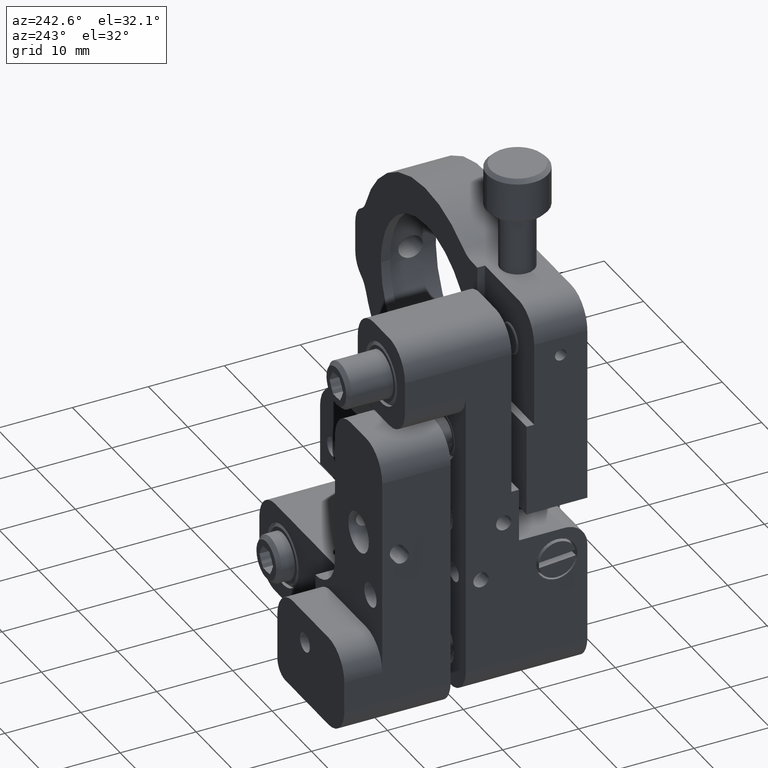
[diagram: clean part render]
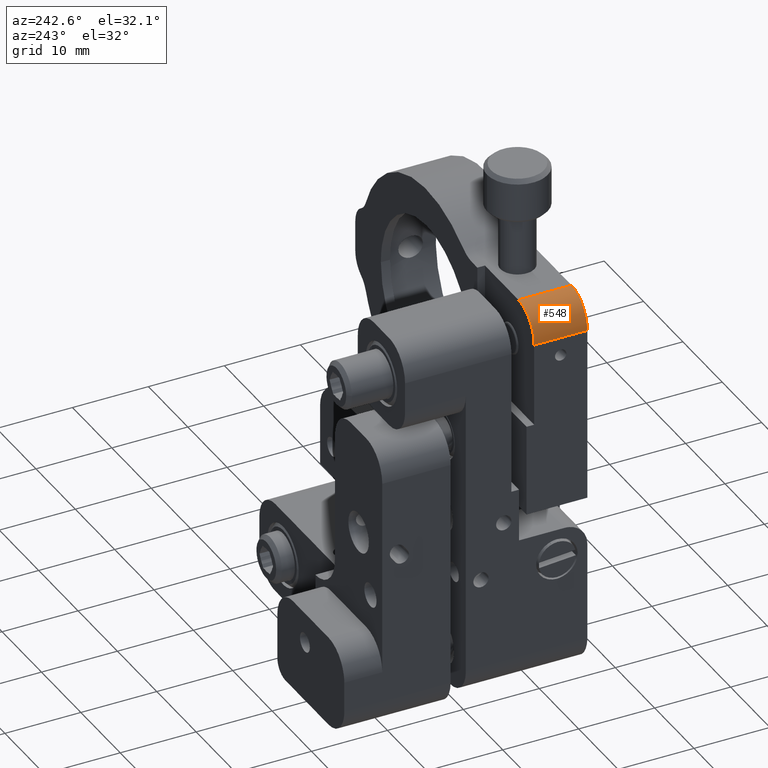
[diagram: same view with one face highlighted and labeled with its STEP entity id]
A machine part, auxiliary view. The second image highlights one B-rep face of the part: STEP entity #548.
In plain terms, the highlighted face is a freeform B-spline surface patch.
Its self-contained STEP definition (entity closure, byte-faithful):
#548=ADVANCED_FACE('',(#995),#16038,.T.);
#995=FACE_OUTER_BOUND('',#1453,.T.);
#1453=EDGE_LOOP('',(#2329,#2330,#2331,#2332));
#2329=ORIENTED_EDGE('',*,*,#12656,.F.);
#2330=ORIENTED_EDGE('',*,*,#12742,.F.);
#2331=ORIENTED_EDGE('',*,*,#12592,.F.);
#2332=ORIENTED_EDGE('',*,*,#12743,.T.);
#4371=PCURVE('',#15848,#6745);
#4495=PCURVE('',#15851,#6869);
#4698=PCURVE('',#15866,#7072);
#4703=PCURVE('',#16038,#7077);
#4704=PCURVE('',#16038,#7078);
#4705=PCURVE('',#16038,#7079);
#4706=PCURVE('',#16038,#7080);
#4707=PCURVE('',#15867,#7081);
#6745=DEFINITIONAL_REPRESENTATION('',(#13809),#34671);
#6869=DEFINITIONAL_REPRESENTATION('',(#13882),#34671);
#7072=DEFINITIONAL_REPRESENTATION('',(#9421),#34671);
#7077=DEFINITIONAL_REPRESENTATION('',(#9423),#34671);
#7078=DEFINITIONAL_REPRESENTATION('',(#9424),#34671);
#7079=DEFINITIONAL_REPRESENTATION('',(#9425),#34671);
#7080=DEFINITIONAL_REPRESENTATION('',(#9426),#34671);
#7081=DEFINITIONAL_REPRESENTATION('',(#9427),#34671);
#9421=B_SPLINE_CURVE_WITH_KNOTS('',1,(#19775,#19776),.UNSPECIFIED.,.F.,
 .F.,(2,2),(0.,6.99999999999999),.UNSPECIFIED.);
#9423=B_SPLINE_CURVE_WITH_KNOTS('',1,(#19792,#19793),.UNSPECIFIED.,.F.,
 .F.,(2,2),(0.,6.28318530717959),.UNSPECIFIED.);
#9424=B_SPLINE_CURVE_WITH_KNOTS('',1,(#19794,#19795),.UNSPECIFIED.,.F.,
 .F.,(2,2),(0.,6.99999999999999),.UNSPECIFIED.);
#9425=B_SPLINE_CURVE_WITH_KNOTS('',1,(#19796,#19797),.UNSPECIFIED.,.F.,
 .F.,(2,2),(0.,6.28318530717959),.UNSPECIFIED.);
#9426=B_SPLINE_CURVE_WITH_KNOTS('',1,(#19800,#19801),.UNSPECIFIED.,.F.,
 .F.,(2,2),(0.,7.00000000000002),.UNSPECIFIED.);
#9427=B_SPLINE_CURVE_WITH_KNOTS('',1,(#19802,#19803),.UNSPECIFIED.,.F.,
 .F.,(2,2),(0.,7.00000000000002),.UNSPECIFIED.);
#11378=SURFACE_CURVE('',#13808,(#4371,#4705),.PCURVE_S1.);
#11442=SURFACE_CURVE('',#13881,(#4495,#4703),.PCURVE_S1.);
#11528=SURFACE_CURVE('',#13981,(#4698,#4704),.PCURVE_S1.);
#11529=SURFACE_CURVE('',#13985,(#4706,#4707),.PCURVE_S1.);
#12592=EDGE_CURVE('',#15093,#15094,#11378,.T.);
#12656=EDGE_CURVE('',#15136,#15137,#11442,.T.);
#12742=EDGE_CURVE('',#15094,#15136,#11528,.T.);
#12743=EDGE_CURVE('',#15093,#15137,#11529,.T.);
#13808=(
BOUNDED_CURVE()
B_SPLINE_CURVE(2,(#18432,#18433,#18434),.UNSPECIFIED.,.F.,.F.)
B_SPLINE_CURVE_WITH_KNOTS((3,3),(0.,6.28318530717959),.UNSPECIFIED.)
CURVE()
GEOMETRIC_REPRESENTATION_ITEM()
RATIONAL_B_SPLINE_CURVE((1.,0.707106781186548,1.))
REPRESENTATION_ITEM('')
);
#13809=(
BOUNDED_CURVE()
B_SPLINE_CURVE(2,(#18435,#18436,#18437),.UNSPECIFIED.,.F.,.F.)
B_SPLINE_CURVE_WITH_KNOTS((3,3),(0.,6.28318530717959),.UNSPECIFIED.)
CURVE()
GEOMETRIC_REPRESENTATION_ITEM()
RATIONAL_B_SPLINE_CURVE((1.,0.707106781186534,1.))
REPRESENTATION_ITEM('')
);
#13881=(
BOUNDED_CURVE()
B_SPLINE_CURVE(2,(#18980,#18981,#18982),.UNSPECIFIED.,.F.,.F.)
B_SPLINE_CURVE_WITH_KNOTS((3,3),(0.,6.28318530717959),.UNSPECIFIED.)
CURVE()
GEOMETRIC_REPRESENTATION_ITEM()
RATIONAL_B_SPLINE_CURVE((1.,0.707106781186543,1.))
REPRESENTATION_ITEM('')
);
#13882=(
BOUNDED_CURVE()
B_SPLINE_CURVE(2,(#18983,#18984,#18985),.UNSPECIFIED.,.F.,.F.)
B_SPLINE_CURVE_WITH_KNOTS((3,3),(0.,6.28318530717959),.UNSPECIFIED.)
CURVE()
GEOMETRIC_REPRESENTATION_ITEM()
RATIONAL_B_SPLINE_CURVE((1.,0.707106781186543,1.))
REPRESENTATION_ITEM('')
);
#13981=(
BOUNDED_CURVE()
B_SPLINE_CURVE(1,(#19773,#19774),.UNSPECIFIED.,.F.,.F.)
B_SPLINE_CURVE_WITH_KNOTS((2,2),(0.,6.99999999999999),.UNSPECIFIED.)
CURVE()
GEOMETRIC_REPRESENTATION_ITEM()
RATIONAL_B_SPLINE_CURVE((1.,1.))
REPRESENTATION_ITEM('')
);
#13985=(
BOUNDED_CURVE()
B_SPLINE_CURVE(1,(#19798,#19799),.UNSPECIFIED.,.F.,.F.)
B_SPLINE_CURVE_WITH_KNOTS((2,2),(0.,7.00000000000002),.UNSPECIFIED.)
CURVE()
GEOMETRIC_REPRESENTATION_ITEM()
RATIONAL_B_SPLINE_CURVE((1.,1.))
REPRESENTATION_ITEM('')
);
#15093=VERTEX_POINT('',#17700);
#15094=VERTEX_POINT('',#17701);
#15136=VERTEX_POINT('',#17743);
#15137=VERTEX_POINT('',#17744);
#15848=B_SPLINE_SURFACE_WITH_KNOTS('',1,1,((#16811,#16812),(#16813,#16814)),
 .UNSPECIFIED.,.F.,.F.,.F.,(2,2),(2,2),(-52.8022156895754,-4.9737991503207E-14),
(4.52970994047064E-14,52.4399999999996),.UNSPECIFIED.);
#15851=B_SPLINE_SURFACE_WITH_KNOTS('',1,1,((#17165,#17166),(#17167,#17168)),
 .UNSPECIFIED.,.F.,.F.,.F.,(2,2),(2,2),(1.04360964314765E-14,18.2400009020169),
(1.13242748511766E-14,15.24),.UNSPECIFIED.);
#15866=B_SPLINE_SURFACE_WITH_KNOTS('',1,1,((#17567,#17568),(#17569,#17570)),
 .UNSPECIFIED.,.F.,.F.,.F.,(2,2),(2,2),(3.69831518778341E-05,27.9488185536053),
(-1.38963729412467E-10,9.84010414065341),.UNSPECIFIED.);
#15867=B_SPLINE_SURFACE_WITH_KNOTS('',1,1,((#17589,#17590),(#17591,#17592)),
 .UNSPECIFIED.,.F.,.F.,.F.,(2,2),(2,2),(-2.99760216648792E-14,9.84000090201685),
(-12.0994916363313,2.97095681389692E-13),.UNSPECIFIED.);
#16038=(
BOUNDED_SURFACE()
B_SPLINE_SURFACE(2,1,((#17571,#17572),(#17573,#17574),(#17575,#17576),(#17577,
#17578),(#17579,#17580),(#17581,#17582),(#17583,#17584),(#17585,#17586),
(#17587,#17588)),.UNSPECIFIED.,.T.,.F.,.F.)
B_SPLINE_SURFACE_WITH_KNOTS((3,2,2,2,3),(2,2),(0.,1.5707963267949,3.14159265358979,
4.71238898038469,6.28318530717959),(0.,8.6400369827588),.UNSPECIFIED.)
GEOMETRIC_REPRESENTATION_ITEM()
RATIONAL_B_SPLINE_SURFACE(((1.,1.),(0.707106781186548,0.707106781186548),
(1.,1.),(0.707106781186548,0.707106781186548),(1.,1.),(0.707106781186548,
0.707106781186548),(1.,1.),(0.707106781186548,0.707106781186548),(1.,1.)))
REPRESENTATION_ITEM('')
SURFACE()
);
#16811=CARTESIAN_POINT('',(119.116464428215,53.6272677187059,-10.0001657535121));
#16812=CARTESIAN_POINT('',(66.6764644282154,53.6272677187059,-10.0001657535121));
#16813=CARTESIAN_POINT('',(119.116464428215,0.825052029503493,-9.99996730110401));
#16814=CARTESIAN_POINT('',(66.6764644282154,0.825052029503493,-9.99996730110401));
#17165=CARTESIAN_POINT('',(116.016464428215,27.2958879038207,-3.00006678932517));
#17166=CARTESIAN_POINT('',(100.776464428215,27.2958879038207,-3.00006678932517));
#17167=CARTESIAN_POINT('',(116.016464428215,45.5358888057088,-3.00013534273821));
#17168=CARTESIAN_POINT('',(100.776464428215,45.5358888057088,-3.00013534273821));
#17567=CARTESIAN_POINT('',(114.646464428215,14.3961719151577,-10.9201228988188));
#17568=CARTESIAN_POINT('',(114.646464428215,14.3961719151577,-1.08001875802639));
#17569=CARTESIAN_POINT('',(114.646464428215,42.3449534856111,-10.9201228988188));
#17570=CARTESIAN_POINT('',(114.646464428215,42.3449534856111,-1.08001875802639));
#17571=CARTESIAN_POINT('',(110.646464428215,35.9158914367345,-2.18008069545278));
#17572=CARTESIAN_POINT('',(110.646464428215,35.9158589639277,-10.8201176781506));
#17573=CARTESIAN_POINT('',(106.646464428215,35.9158914367345,-2.18008069545278));
#17574=CARTESIAN_POINT('',(106.646464428215,35.9158589639277,-10.8201176781506));
#17575=CARTESIAN_POINT('',(106.646464428215,39.9158914367062,-2.18009572909524));
#17576=CARTESIAN_POINT('',(106.646464428215,39.9158589638995,-10.820132711793));
#17577=CARTESIAN_POINT('',(106.646464428215,43.915891436678,-2.18011076273769));
#17578=CARTESIAN_POINT('',(106.646464428215,43.9158589638713,-10.8201477454355));
#17579=CARTESIAN_POINT('',(110.646464428215,43.915891436678,-2.18011076273769));
#17580=CARTESIAN_POINT('',(110.646464428215,43.9158589638713,-10.8201477454355));
#17581=CARTESIAN_POINT('',(114.646464428215,43.915891436678,-2.18011076273769));
#17582=CARTESIAN_POINT('',(114.646464428215,43.9158589638713,-10.8201477454355));
#17583=CARTESIAN_POINT('',(114.646464428215,39.9158914367062,-2.18009572909524));
#17584=CARTESIAN_POINT('',(114.646464428215,39.9158589638995,-10.820132711793));
#17585=CARTESIAN_POINT('',(114.646464428215,35.9158914367345,-2.18008069545278));
#17586=CARTESIAN_POINT('',(114.646464428215,35.9158589639277,-10.8201176781506));
#17587=CARTESIAN_POINT('',(110.646464428215,35.9158914367345,-2.18008069545278));
#17588=CARTESIAN_POINT('',(110.646464428215,35.9158589639277,-10.8201176781506));
#17589=CARTESIAN_POINT('',(99.6552637615777,43.915858588098,-10.9201297050638));
#17590=CARTESIAN_POINT('',(111.754755397909,43.915858588098,-10.9201297050638));
#17591=CARTESIAN_POINT('',(99.6552637615777,43.9158955708619,-1.08012880311645));
#17592=CARTESIAN_POINT('',(111.754755397909,43.9158955708619,-1.08012880311645));
#17700=CARTESIAN_POINT('',(110.646464428215,43.9158620458375,-10.0001292540619));
#17701=CARTESIAN_POINT('',(114.646464428215,39.9158620458657,-10.0001142204194));
#17743=CARTESIAN_POINT('',(114.646464428215,39.91588835474,-3.00011422046885));
#17744=CARTESIAN_POINT('',(110.646464428215,43.9158883547118,-3.00012925411132));
#18432=CARTESIAN_POINT('',(110.646464428215,43.9158620458375,-10.0001292540619));
#18433=CARTESIAN_POINT('',(114.646464428215,43.9158620458375,-10.0001292540619));
#18434=CARTESIAN_POINT('',(114.646464428215,39.9158620458657,-10.0001142204194));
#18435=CARTESIAN_POINT('',(-43.0908100166384,8.47));
#18436=CARTESIAN_POINT('',(-43.0908100166385,4.47000000000001));
#18437=CARTESIAN_POINT('',(-39.0908100166384,4.47));
#18980=CARTESIAN_POINT('',(114.646464428215,39.91588835474,-3.00011422046885));
#18981=CARTESIAN_POINT('',(114.646464428215,43.9158883547118,-3.00012925411132));
#18982=CARTESIAN_POINT('',(110.646464428215,43.9158883547118,-3.00012925411132));
#18983=CARTESIAN_POINT('',(12.6200004510084,1.37));
#18984=CARTESIAN_POINT('',(16.6200004510085,1.37));
#18985=CARTESIAN_POINT('',(16.6200004510085,5.37));
#19773=CARTESIAN_POINT('',(114.646464428215,39.9158620458657,-10.0001142204194));
#19774=CARTESIAN_POINT('',(114.646464428215,39.91588835474,-3.00011422046885));
#19775=CARTESIAN_POINT('',(25.5197271138599,0.9200086782604));
#19776=CARTESIAN_POINT('',(25.5197534227342,7.92000867821095));
#19792=CARTESIAN_POINT('',(4.71238898038469,0.820018491379403));
#19793=CARTESIAN_POINT('',(3.14159265358979,0.82001849137942));
#19794=CARTESIAN_POINT('',(4.71238898038469,7.82001849137941));
#19795=CARTESIAN_POINT('',(4.71238898038469,0.820018491379403));
#19796=CARTESIAN_POINT('',(3.14159265358979,7.82001849137941));
#19797=CARTESIAN_POINT('',(4.71238898038469,7.82001849137941));
#19798=CARTESIAN_POINT('',(110.646464428215,43.9158620458375,-10.0001292540619));
#19799=CARTESIAN_POINT('',(110.646464428215,43.9158883547118,-3.00012925411132));
#19800=CARTESIAN_POINT('',(3.14159265358979,7.82001849137941));
#19801=CARTESIAN_POINT('',(3.14159265358979,0.82001849137942));
#19802=CARTESIAN_POINT('',(0.920000451008397,-1.108290969694));
#19803=CARTESIAN_POINT('',(7.92000045100842,-1.108290969694));
#34671=(
GEOMETRIC_REPRESENTATION_CONTEXT(2)
PARAMETRIC_REPRESENTATION_CONTEXT()
REPRESENTATION_CONTEXT('pspace','')
);